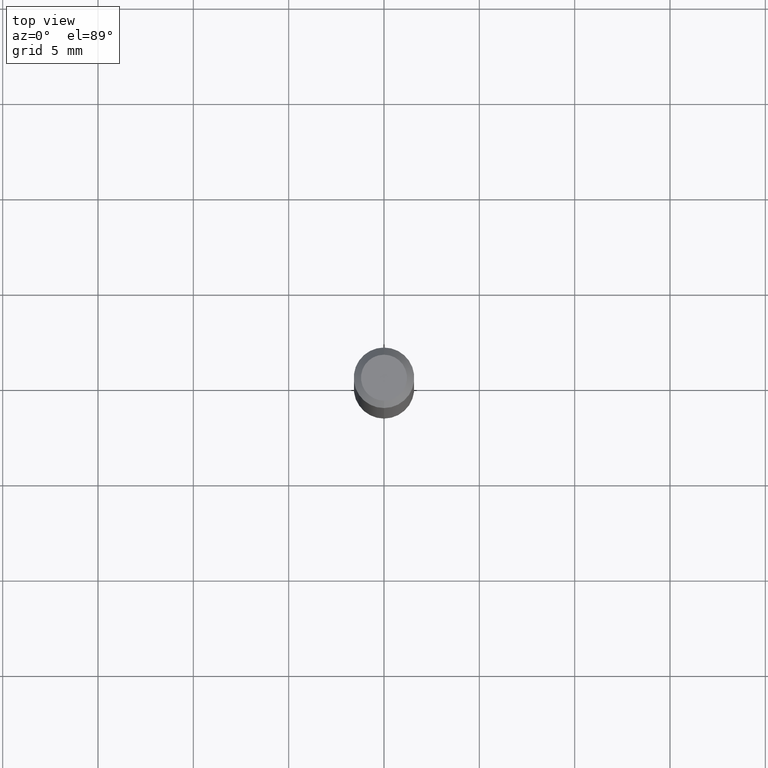
[diagram: clean part render]
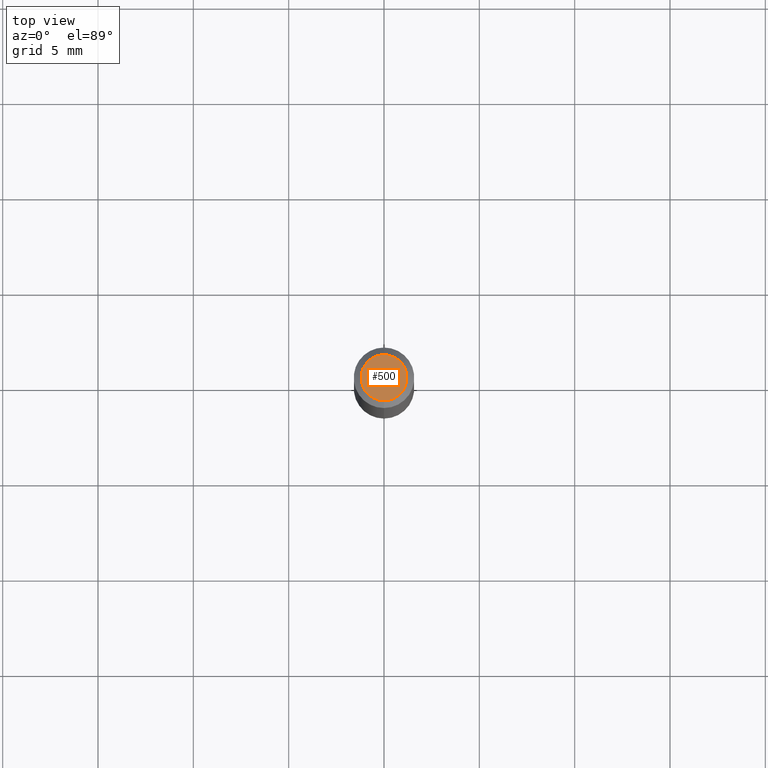
[diagram: same view with one face highlighted and labeled with its STEP entity id]
A machine part, top view. The second image highlights one B-rep face of the part: STEP entity #500.
In plain terms, the highlighted planar face has unit normal (0, -0, -1).
Its self-contained STEP definition (entity closure, byte-faithful):
#22 = EDGE_LOOP ( 'NONE', ( #379, #504 ) ) ;
#26 = EDGE_CURVE ( 'NONE', #174, #498, #213, .T. ) ;
#73 = CARTESIAN_POINT ( 'NONE',  ( -3.773273898774340269E-16, -0.04749999999999999362, 1.569829569697847922E-16 ) ) ;
#91 = CARTESIAN_POINT ( 'NONE',  ( 2.167032300185452705E-46, -3.093908925693345979E-32, -8.861363108547854562E-18 ) ) ;
#92 = CARTESIAN_POINT ( 'NONE',  ( 2.167032300185452705E-46, -3.093908925693345979E-32, -8.861363108547854562E-18 ) ) ;
#130 = AXIS2_PLACEMENT_3D ( 'NONE', #459, #421, #146 ) ;
#146 = DIRECTION ( 'NONE',  ( 6.982962677686265922E-15, 1.000000000000000000, -3.491459370070161539E-15 ) ) ;
#167 = DIRECTION ( 'NONE',  ( -6.982962677686266711E-15, -1.000000000000000000, 3.491459370070161145E-15 ) ) ;
#174 = VERTEX_POINT ( 'NONE', #241 ) ;
#180 = CIRCLE ( 'NONE', #470, 0.04749999999999999362 ) ;
#213 = CIRCLE ( 'NONE', #277, 0.04749999999999999362 ) ;
#225 = FACE_OUTER_BOUND ( 'NONE', #22, .T. ) ;
#241 = CARTESIAN_POINT ( 'NONE',  ( 3.840629472727447874E-16, 0.04749999999999999362, -1.747056831868805136E-16 ) ) ;
#250 = DIRECTION ( 'NONE',  ( -6.982962677686266711E-15, -1.000000000000000000, 3.491459370070161145E-15 ) ) ;
#277 = AXIS2_PLACEMENT_3D ( 'NONE', #91, #286, #250 ) ;
#286 = DIRECTION ( 'NONE',  ( -2.445484146897318999E-29, 3.491459370070161145E-15, 1.000000000000000000 ) ) ;
#345 = EDGE_CURVE ( 'NONE', #498, #174, #180, .T. ) ;
#379 = ORIENTED_EDGE ( 'NONE', *, *, #26, .T. ) ;
#416 = DIRECTION ( 'NONE',  ( -2.445484146897318999E-29, 3.491459370070161145E-15, 1.000000000000000000 ) ) ;
#421 = DIRECTION ( 'NONE',  ( 2.445484146897318439E-29, -3.491459370070161539E-15, -1.000000000000000000 ) ) ;
#459 = CARTESIAN_POINT ( 'NONE',  ( 3.316907271900976096E-16, 0.04749999999999999362, -1.702750016326065771E-16 ) ) ;
#469 = PLANE ( 'NONE',  #130 ) ;
#470 = AXIS2_PLACEMENT_3D ( 'NONE', #92, #416, #167 ) ;
#498 = VERTEX_POINT ( 'NONE', #73 ) ;
#500 = ADVANCED_FACE ( 'NONE', ( #225 ), #469, .F. ) ;
#504 = ORIENTED_EDGE ( 'NONE', *, *, #345, .T. ) ;